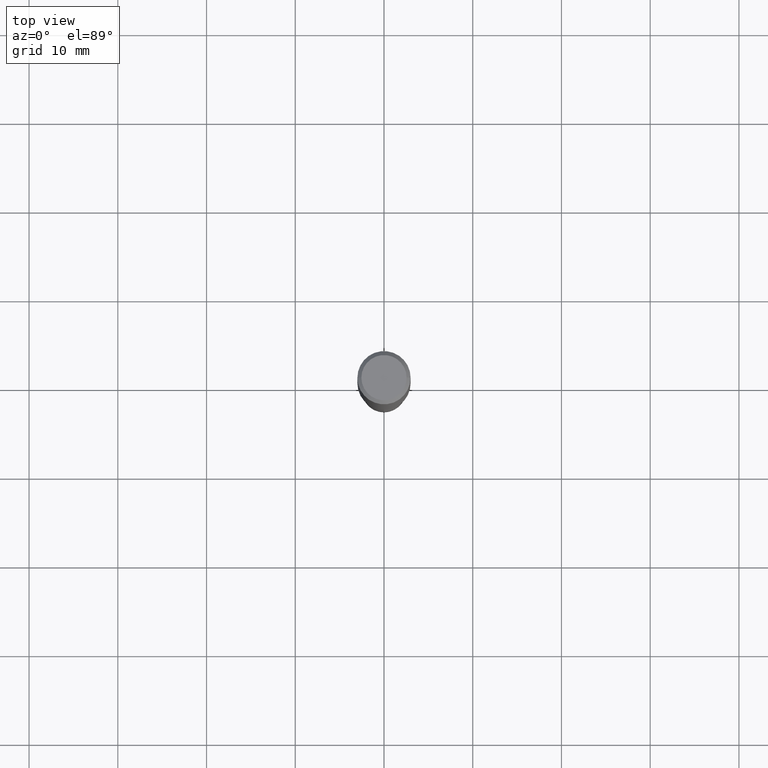
[diagram: clean part render]
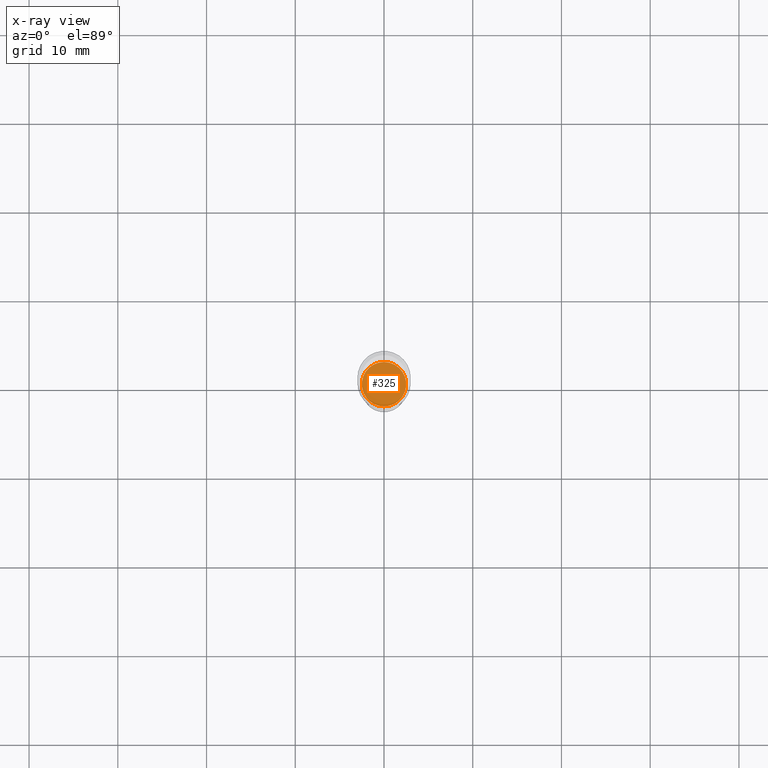
[diagram: x-ray — body ghosted, one internal face saturated and labeled with its STEP entity id]
A machine part, top view, then the same camera in x-ray: the body is ghosted and one INTERNAL B-rep face — a face not visible from any outside direction — is saturated and labeled: STEP entity #325.
In plain terms, the highlighted planar face has unit normal (0, -0, -1).
Its self-contained STEP definition (entity closure, byte-faithful):
#3 = DIRECTION ( 'NONE',  ( -6.982962677686265922E-15, -1.000000000000000000, 2.774858297271979165E-15 ) ) ;
#13 = CARTESIAN_POINT ( 'NONE',  ( 4.139934141990818357E-29, -5.910728758527561864E-15, -1.692900000000000071 ) ) ;
#47 = EDGE_LOOP ( 'NONE', ( #277, #362 ) ) ;
#100 = AXIS2_PLACEMENT_3D ( 'NONE', #13, #199, #287 ) ;
#117 = DIRECTION ( 'NONE',  ( -2.445514466918933997E-29, 3.491415950073500322E-15, 1.000000000000000000 ) ) ;
#144 = EDGE_CURVE ( 'NONE', #354, #485, #327, .T. ) ;
#157 = DIRECTION ( 'NONE',  ( -6.982962677686265922E-15, -1.000000000000000000, 2.774858297271979165E-15 ) ) ;
#188 = DIRECTION ( 'NONE',  ( -2.445514466918933997E-29, 3.491415950073500322E-15, 1.000000000000000000 ) ) ;
#199 = DIRECTION ( 'NONE',  ( 2.445514466918933436E-29, -3.491415950073500322E-15, -1.000000000000000000 ) ) ;
#237 = AXIS2_PLACEMENT_3D ( 'NONE', #345, #188, #157 ) ;
#239 = CARTESIAN_POINT ( 'NONE',  ( 6.995293233558967993E-16, 0.09844999999999408391, -1.692900000000000293 ) ) ;
#243 = CIRCLE ( 'NONE', #320, 0.09844999999999999585 ) ;
#277 = ORIENTED_EDGE ( 'NONE', *, *, #292, .T. ) ;
#287 = DIRECTION ( 'NONE',  ( 6.982962677686265922E-15, 1.000000000000000000, -3.491415950073500322E-15 ) ) ;
#292 = EDGE_CURVE ( 'NONE', #485, #354, #243, .T. ) ;
#320 = AXIS2_PLACEMENT_3D ( 'NONE', #459, #117, #3 ) ;
#325 = ADVANCED_FACE ( 'NONE', ( #367 ), #399, .F. ) ;
#327 = CIRCLE ( 'NONE', #237, 0.09844999999999999585 ) ;
#345 = CARTESIAN_POINT ( 'NONE',  ( 4.139934141990818357E-29, -5.910728758527561864E-15, -1.692900000000000071 ) ) ;
#354 = VERTEX_POINT ( 'NONE', #239 ) ;
#362 = ORIENTED_EDGE ( 'NONE', *, *, #144, .T. ) ;
#367 = FACE_OUTER_BOUND ( 'NONE', #47, .T. ) ;
#399 = PLANE ( 'NONE',  #100 ) ;
#454 = CARTESIAN_POINT ( 'NONE',  ( -6.874726756181714407E-16, -0.09845000000000590779, -1.692899999999999849 ) ) ;
#459 = CARTESIAN_POINT ( 'NONE',  ( 4.139934141990818357E-29, -5.910728758527561864E-15, -1.692900000000000071 ) ) ;
#485 = VERTEX_POINT ( 'NONE', #454 ) ;